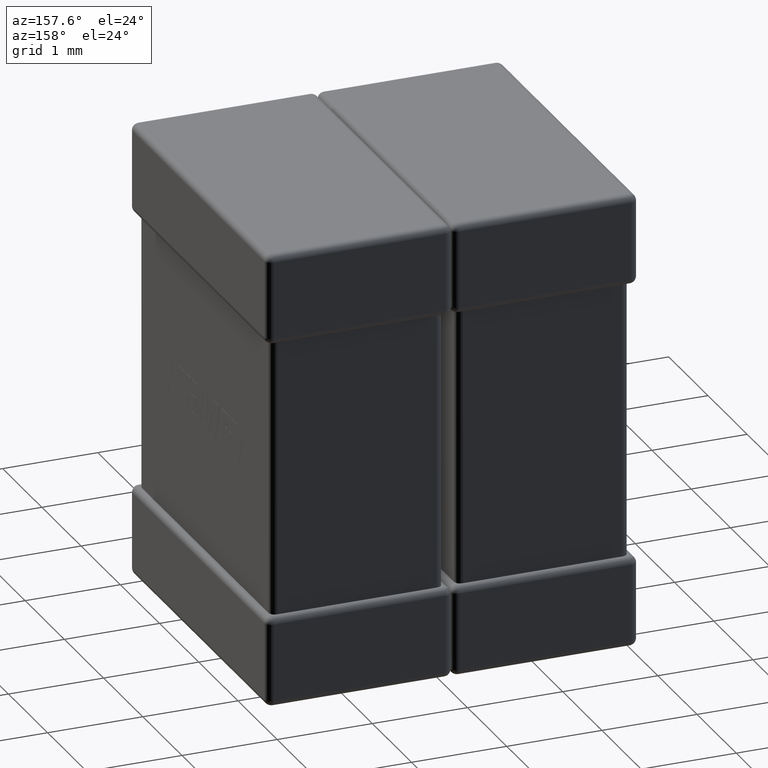
[diagram: clean part render]
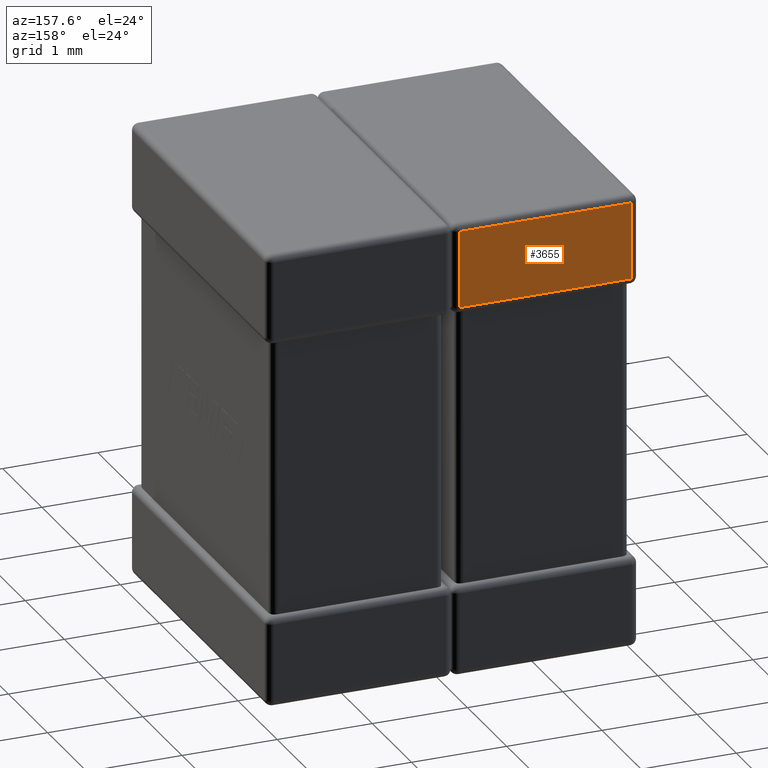
[diagram: same view with one face highlighted and labeled with its STEP entity id]
A machine part, auxiliary view. The second image highlights one B-rep face of the part: STEP entity #3655.
In plain terms, the highlighted planar face has unit normal (0, 1, 0).
Its self-contained STEP definition (entity closure, byte-faithful):
#201 = EDGE_LOOP ( 'NONE', ( #1641, #6237, #2203, #3661 ) ) ;
#210 = CARTESIAN_POINT ( 'NONE',  ( 0.06999999999999936828, 3.500000000000000000, -4.799999999999999822 ) ) ;
#377 = CARTESIAN_POINT ( 'NONE',  ( -6.505213034913026604E-16, 3.500000000000000000, -4.799999999999999822 ) ) ;
#752 = CARTESIAN_POINT ( 'NONE',  ( 1.949999999999999289, 3.500000000000000000, -0.07000000000000000666 ) ) ;
#879 = LINE ( 'NONE', #752, #8578 ) ;
#1641 = ORIENTED_EDGE ( 'NONE', *, *, #5131, .T. ) ;
#1857 = CARTESIAN_POINT ( 'NONE',  ( 0.06999999999999936828, 3.500000000000000000, -0.07000000000000000666 ) ) ;
#1885 = EDGE_CURVE ( 'NONE', #5804, #8026, #3941, .T. ) ;
#2203 = ORIENTED_EDGE ( 'NONE', *, *, #4888, .T. ) ;
#2585 = LINE ( 'NONE', #4663, #5729 ) ;
#2907 = DIRECTION ( 'NONE',  ( 0.000000000000000000, -0.000000000000000000, 1.000000000000000000 ) ) ;
#3655 = ADVANCED_FACE ( 'NONE', ( #4527 ), #5705, .T. ) ;
#3661 = ORIENTED_EDGE ( 'NONE', *, *, #4427, .T. ) ;
#3941 = LINE ( 'NONE', #5499, #5854 ) ;
#4154 = VERTEX_POINT ( 'NONE', #4800 ) ;
#4427 = EDGE_CURVE ( 'NONE', #5415, #4154, #879, .T. ) ;
#4527 = FACE_OUTER_BOUND ( 'NONE', #201, .T. ) ;
#4663 = CARTESIAN_POINT ( 'NONE',  ( 1.879999999999999227, 3.500000000000000000, -4.799999999999999822 ) ) ;
#4800 = CARTESIAN_POINT ( 'NONE',  ( 1.879999999999999227, 3.500000000000000000, -0.07000000000000000666 ) ) ;
#4888 = EDGE_CURVE ( 'NONE', #8026, #5415, #8337, .T. ) ;
#5131 = EDGE_CURVE ( 'NONE', #4154, #5804, #2585, .T. ) ;
#5340 = DIRECTION ( 'NONE',  ( -0.000000000000000000, 0.000000000000000000, -1.000000000000000000 ) ) ;
#5415 = VERTEX_POINT ( 'NONE', #1857 ) ;
#5499 = CARTESIAN_POINT ( 'NONE',  ( -1.517883041479706208E-15, 3.500000000000000000, -0.8800000000000002265 ) ) ;
#5584 = DIRECTION ( 'NONE',  ( 1.000000000000000000, -0.000000000000000000, 0.000000000000000000 ) ) ;
#5705 = PLANE ( 'NONE',  #7374 ) ;
#5729 = VECTOR ( 'NONE', #5340, 1000.000000000000000 ) ;
#5759 = CARTESIAN_POINT ( 'NONE',  ( 1.879999999999999227, 3.500000000000000000, -0.8800000000000002265 ) ) ;
#5804 = VERTEX_POINT ( 'NONE', #5759 ) ;
#5854 = VECTOR ( 'NONE', #8213, 1000.000000000000000 ) ;
#6237 = ORIENTED_EDGE ( 'NONE', *, *, #1885, .T. ) ;
#7374 = AXIS2_PLACEMENT_3D ( 'NONE', #377, #7926, #8435 ) ;
#7864 = VECTOR ( 'NONE', #2907, 1000.000000000000000 ) ;
#7926 = DIRECTION ( 'NONE',  ( 0.000000000000000000, 1.000000000000000000, 0.000000000000000000 ) ) ;
#8026 = VERTEX_POINT ( 'NONE', #8785 ) ;
#8213 = DIRECTION ( 'NONE',  ( -1.000000000000000000, 0.000000000000000000, -0.000000000000000000 ) ) ;
#8337 = LINE ( 'NONE', #210, #7864 ) ;
#8435 = DIRECTION ( 'NONE',  ( 0.000000000000000000, -0.000000000000000000, 1.000000000000000000 ) ) ;
#8578 = VECTOR ( 'NONE', #5584, 1000.000000000000000 ) ;
#8785 = CARTESIAN_POINT ( 'NONE',  ( 0.06999999999999936828, 3.500000000000000000, -0.8800000000000002265 ) ) ;